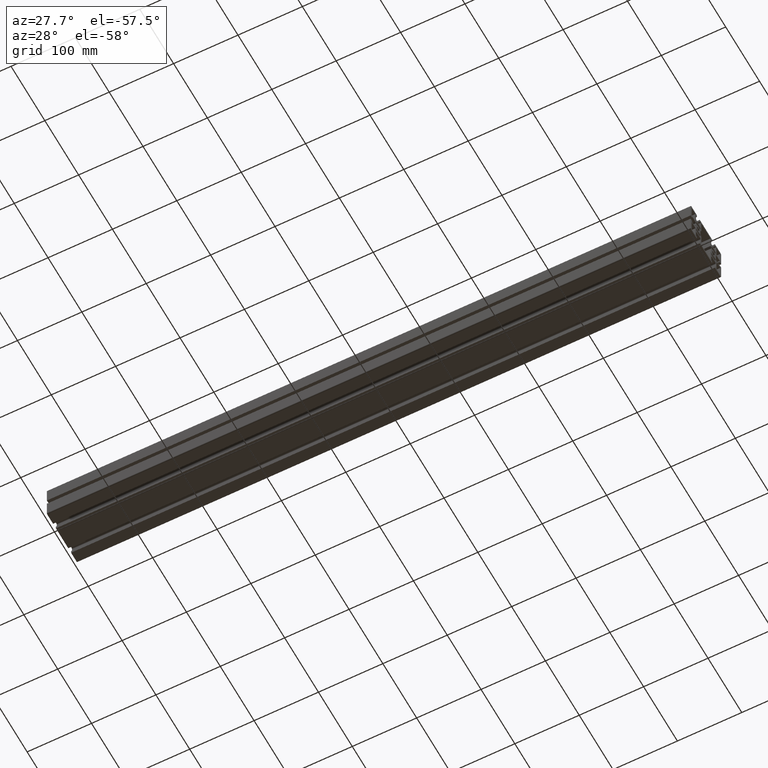
[diagram: clean part render]
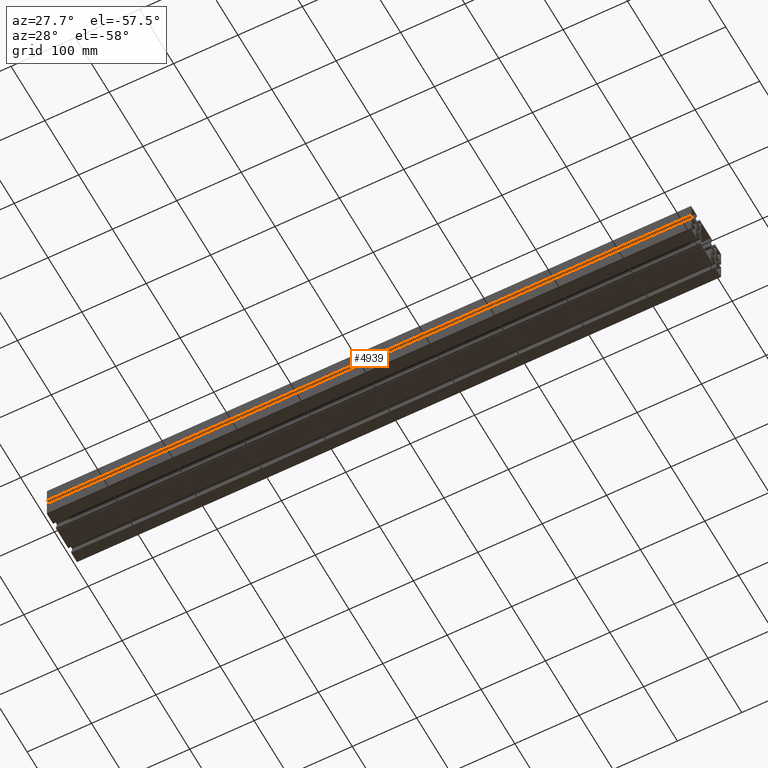
[diagram: same view with one face highlighted and labeled with its STEP entity id]
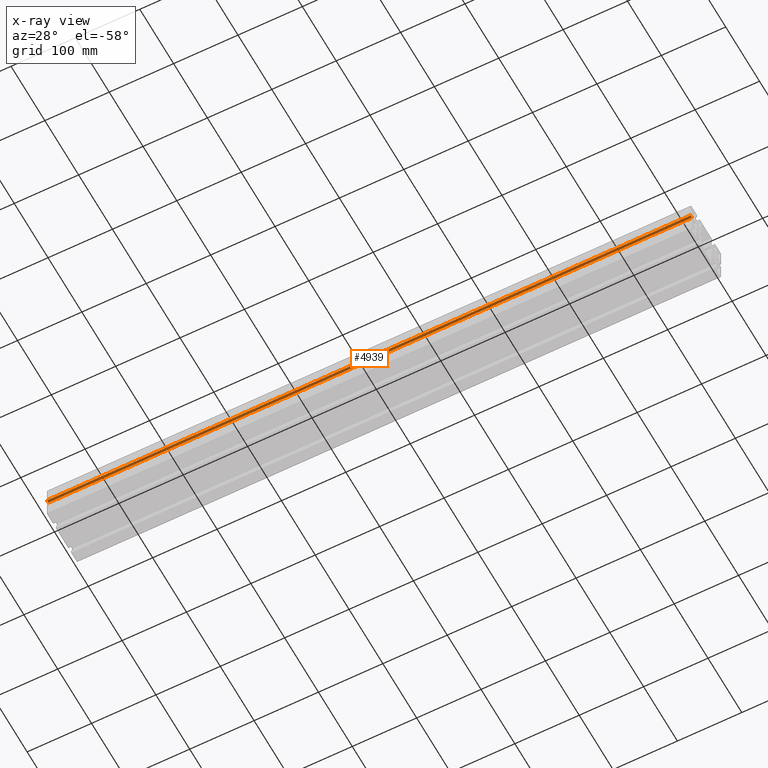
[diagram: x-ray of the same camera — body ghosted, the highlighted face saturated]
A machine part, auxiliary view. The second image highlights one B-rep face of the part: STEP entity #4939.
The next image is the same camera in x-ray: the body ghosted, the highlighted face saturated — about 0% of this face is hidden behind the body in this view.
In plain terms, the highlighted planar face has unit normal (0, 0, -1).
Its self-contained STEP definition (entity closure, byte-faithful):
#411=FACE_OUTER_BOUND('',#655,.T.);
#655=EDGE_LOOP('',(#3821,#3822,#3823,#3824));
#1171=LINE('',#7791,#1761);
#1172=LINE('',#7794,#1762);
#1173=LINE('',#7796,#1763);
#1174=LINE('',#7797,#1764);
#1761=VECTOR('',#6358,10.);
#1762=VECTOR('',#6361,10.);
#1763=VECTOR('',#6362,10.);
#1764=VECTOR('',#6363,10.);
#2271=VERTEX_POINT('',#7787);
#2272=VERTEX_POINT('',#7789);
#2273=VERTEX_POINT('',#7793);
#2274=VERTEX_POINT('',#7795);
#2925=EDGE_CURVE('',#2271,#2272,#1171,.T.);
#2926=EDGE_CURVE('',#2271,#2273,#1172,.T.);
#2927=EDGE_CURVE('',#2274,#2272,#1173,.T.);
#2928=EDGE_CURVE('',#2273,#2274,#1174,.T.);
#3821=ORIENTED_EDGE('',*,*,#2926,.F.);
#3822=ORIENTED_EDGE('',*,*,#2925,.T.);
#3823=ORIENTED_EDGE('',*,*,#2927,.F.);
#3824=ORIENTED_EDGE('',*,*,#2928,.F.);
#4718=PLANE('',#5296);
#4939=ADVANCED_FACE('',(#411),#4718,.T.);
#5296=AXIS2_PLACEMENT_3D('',#7792,#6359,#6360);
#6358=DIRECTION('',(1.,0.,0.));
#6359=DIRECTION('center_axis',(0.,0.,-1.));
#6360=DIRECTION('ref_axis',(0.,1.,0.));
#6361=DIRECTION('',(0.,-1.,0.));
#6362=DIRECTION('',(0.,1.,0.));
#6363=DIRECTION('',(1.,0.,0.));
#7787=CARTESIAN_POINT('',(0.,-18.2000000000006,4.1533255000003));
#7789=CARTESIAN_POINT('',(1000.,-18.2000000000006,4.1533255000003));
#7791=CARTESIAN_POINT('',(0.,-18.2000000000006,4.1533255000003));
#7792=CARTESIAN_POINT('Origin',(0.,-22.5000000000012,4.1533255000003));
#7793=CARTESIAN_POINT('',(0.,-22.5000000000012,4.1533255000003));
#7794=CARTESIAN_POINT('',(0.,-18.2000000000006,4.1533255000003));
#7795=CARTESIAN_POINT('',(1000.,-22.5000000000012,4.1533255000003));
#7796=CARTESIAN_POINT('',(1000.,-18.2000000000006,4.1533255000003));
#7797=CARTESIAN_POINT('',(0.,-22.5000000000012,4.1533255000003));